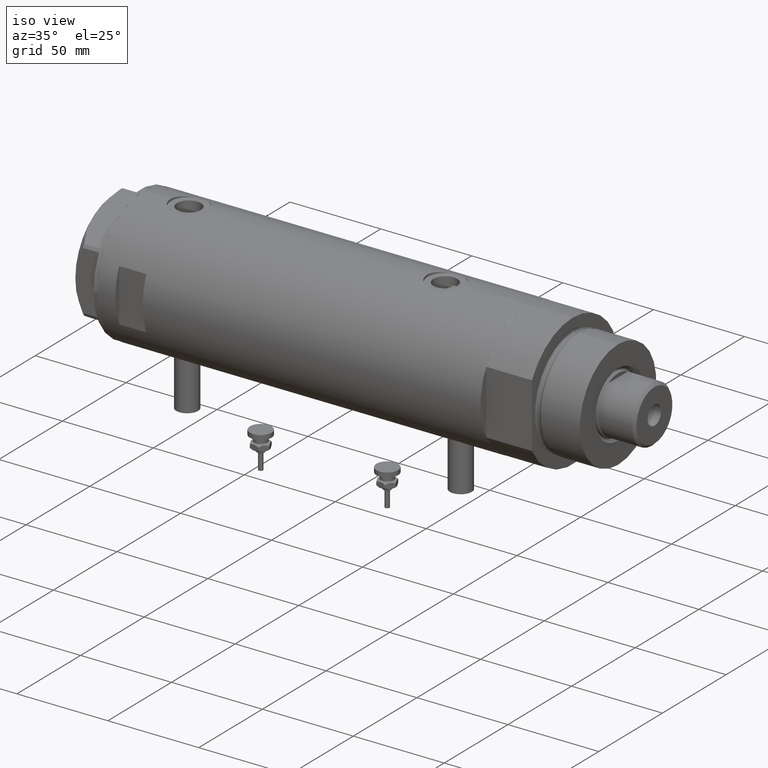
[diagram: clean part render]
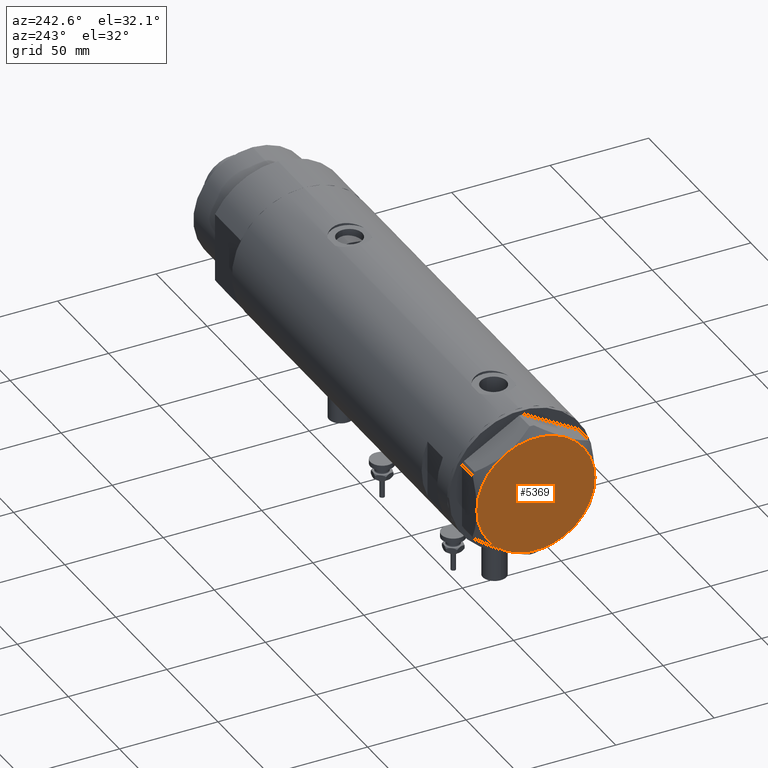
[diagram: tour spotlight — one face highlighted and labeled with its STEP entity id]
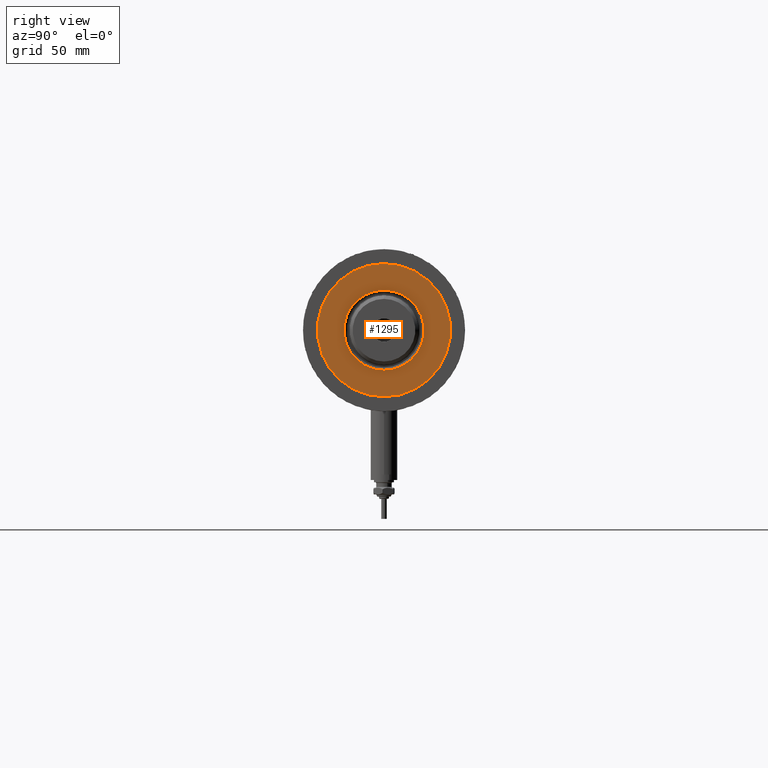
[diagram: tour spotlight — one face highlighted and labeled with its STEP entity id]
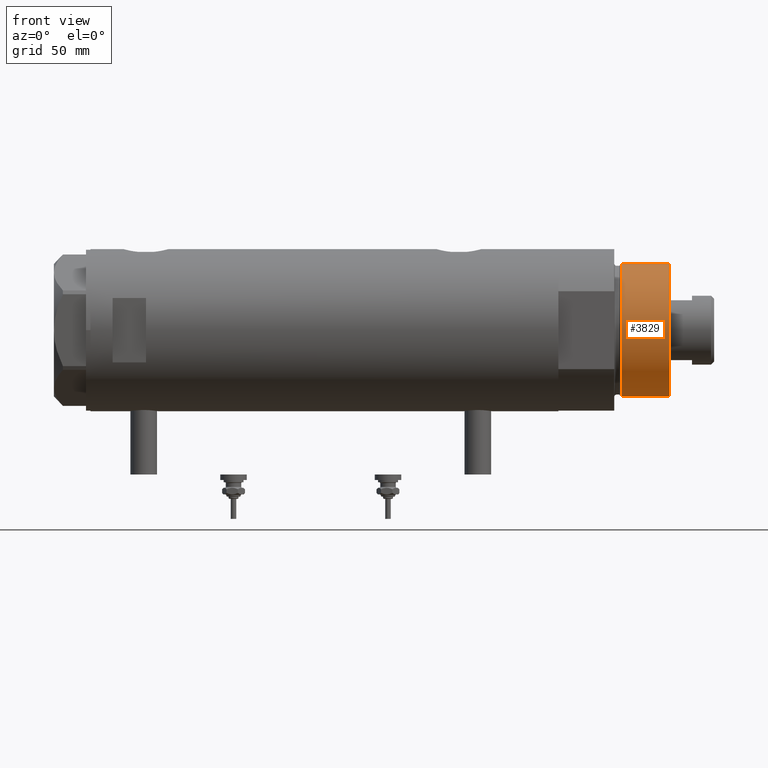
[diagram: tour spotlight — one face highlighted and labeled with its STEP entity id]
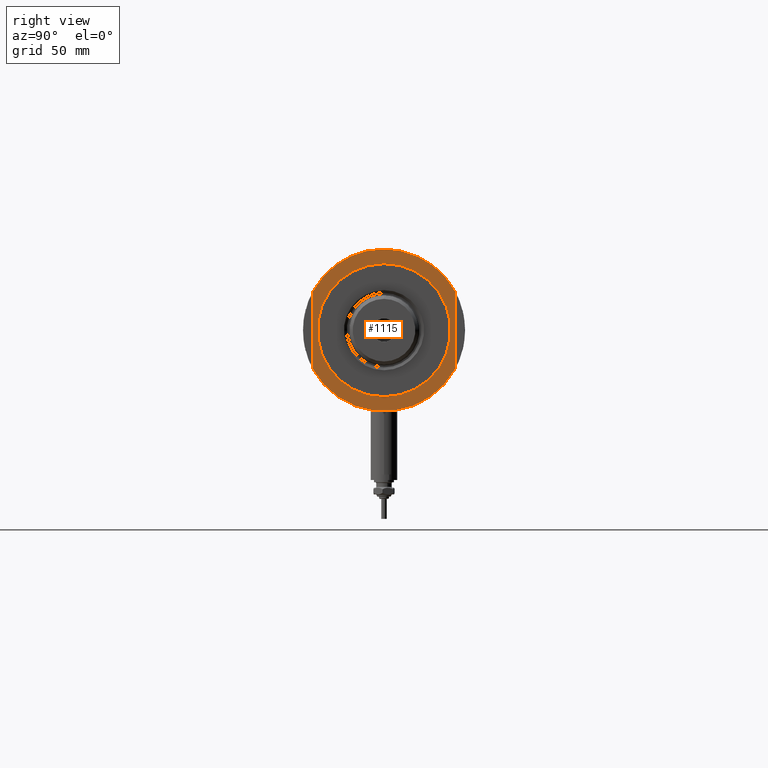
[diagram: tour spotlight — one face highlighted and labeled with its STEP entity id]
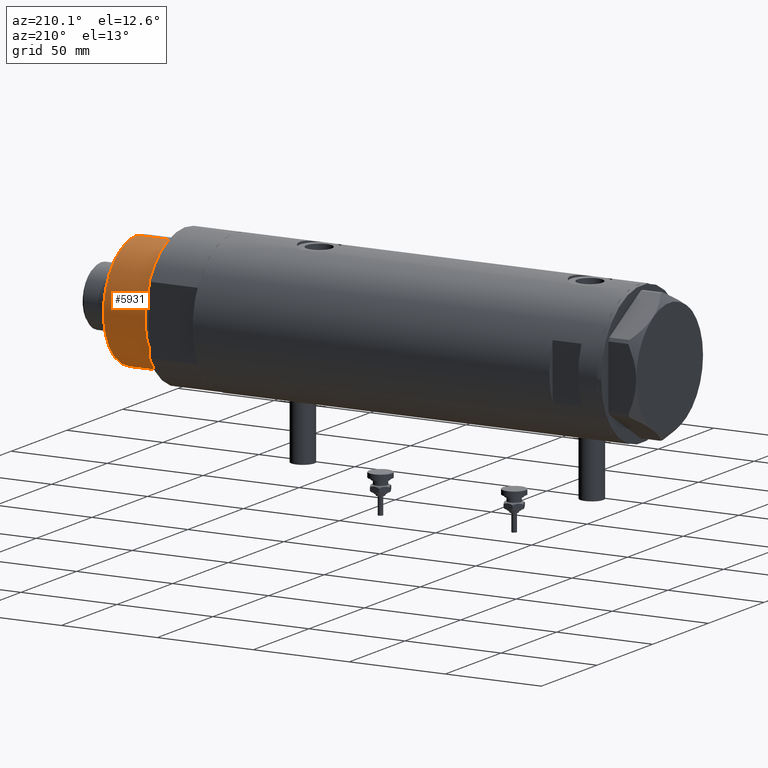
[diagram: tour spotlight — one face highlighted and labeled with its STEP entity id]
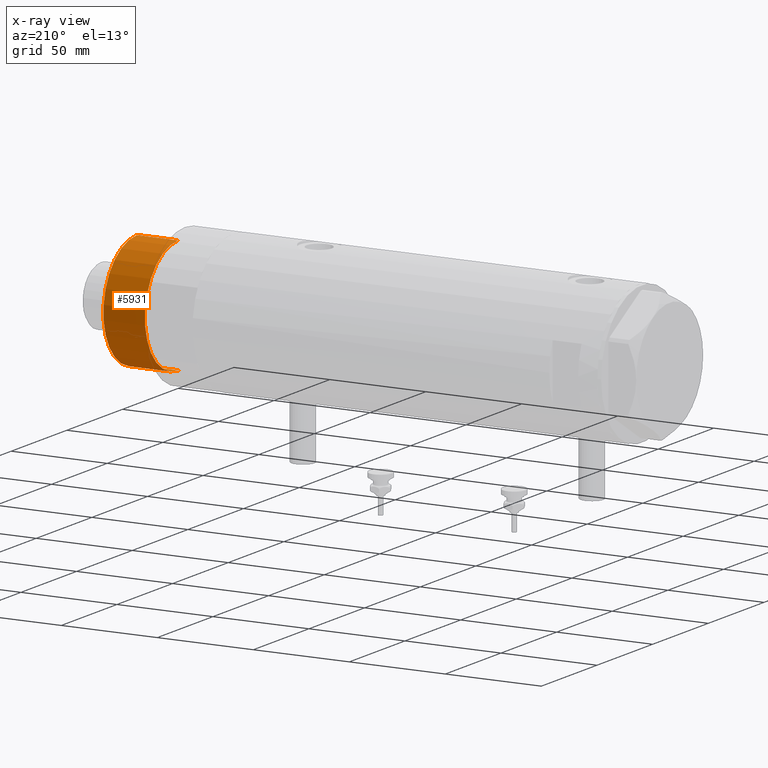
[diagram: x-ray of the same camera — body ghosted, this tour face saturated]
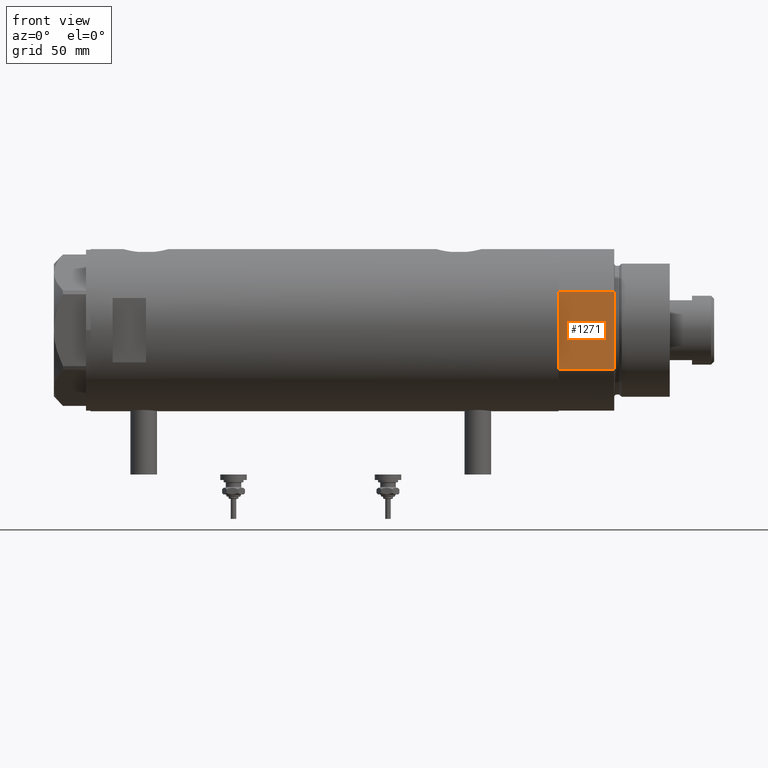
[diagram: tour spotlight — one face highlighted and labeled with its STEP entity id]
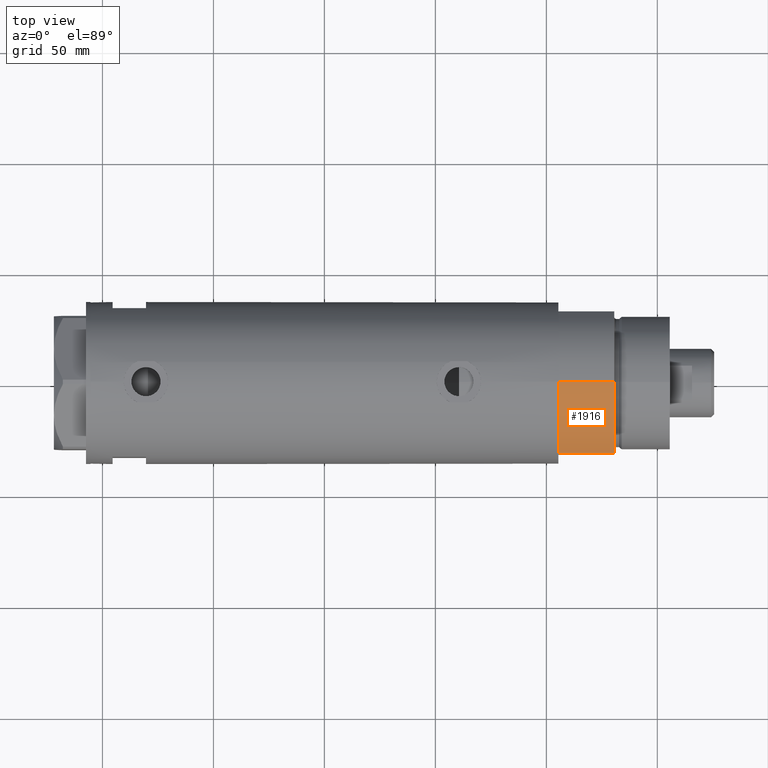
[diagram: tour spotlight — one face highlighted and labeled with its STEP entity id]
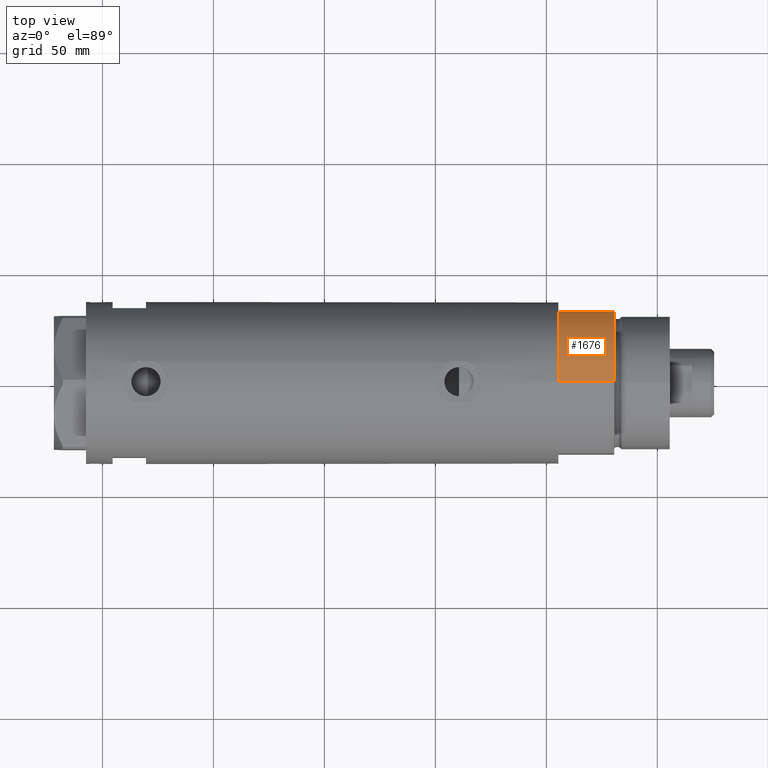
[diagram: tour spotlight — one face highlighted and labeled with its STEP entity id]
A machine part: a face-by-face anatomy tour. The part has 212 B-rep faces; the first image is the clean iso view, then the 8 largest visible faces are spotlighted one at a time (largest first), each with its STEP entity span.

Face 1 — auxiliary view, entity #5369. In plain terms, the highlighted planar face has unit normal (-1, -0, 0).
Definition (entity closure, byte-faithful):
#148 = CIRCLE ( 'NONE', #5714, 30.00000000000000000 ) ;
#362 = EDGE_CURVE ( 'NONE', #2257, #3796, #4923, .T. ) ;
#457 = CARTESIAN_POINT ( 'NONE',  ( 14.99999999999998757, -25.98076211353316722, 14.50000000000000000 ) ) ;
#553 = CARTESIAN_POINT ( 'NONE',  ( 0.000000000000000000, 0.000000000000000000, 14.50000000000000000 ) ) ;
#593 = CARTESIAN_POINT ( 'NONE',  ( 14.99999999999999467, 25.98076211353316367, 14.50000000000000000 ) ) ;
#604 = DIRECTION ( 'NONE',  ( 1.000000000000000000, 0.000000000000000000, 0.000000000000000000 ) ) ;
#734 = CARTESIAN_POINT ( 'NONE',  ( 0.000000000000000000, 0.000000000000000000, 14.50000000000000000 ) ) ;
#924 = CIRCLE ( 'NONE', #1023, 30.00000000000000000 ) ;
#1023 = AXIS2_PLACEMENT_3D ( 'NONE', #2995, #2201, #1208 ) ;
#1129 = DIRECTION ( 'NONE',  ( 1.000000000000000000, 0.000000000000000000, 0.000000000000000000 ) ) ;
#1142 = CIRCLE ( 'NONE', #1339, 30.00000000000000000 ) ;
#1159 = CARTESIAN_POINT ( 'NONE',  ( 0.000000000000000000, 0.000000000000000000, 14.50000000000000000 ) ) ;
#1208 = DIRECTION ( 'NONE',  ( 1.000000000000000000, 0.000000000000000000, 0.000000000000000000 ) ) ;
#1235 = ORIENTED_EDGE ( 'NONE', *, *, #5093, .T. ) ;
#1339 = AXIS2_PLACEMENT_3D ( 'NONE', #734, #4998, #3902 ) ;
#1358 = VERTEX_POINT ( 'NONE', #457 ) ;
#1395 = ORIENTED_EDGE ( 'NONE', *, *, #3097, .T. ) ;
#1505 = DIRECTION ( 'NONE',  ( 1.000000000000000000, 0.000000000000000000, 0.000000000000000000 ) ) ;
#1507 = CARTESIAN_POINT ( 'NONE',  ( -14.99999999999999645, -25.98076211353316367, 14.50000000000000000 ) ) ;
#1604 = VERTEX_POINT ( 'NONE', #2393 ) ;
#1748 = ORIENTED_EDGE ( 'NONE', *, *, #362, .T. ) ;
#1857 = VERTEX_POINT ( 'NONE', #4425 ) ;
#1883 = EDGE_CURVE ( 'NONE', #1604, #2461, #148, .T. ) ;
#2067 = AXIS2_PLACEMENT_3D ( 'NONE', #5623, #4316, #604 ) ;
#2092 = PLANE ( 'NONE',  #2745 ) ;
#2201 = DIRECTION ( 'NONE',  ( 0.000000000000000000, 0.000000000000000000, 1.000000000000000000 ) ) ;
#2220 = DIRECTION ( 'NONE',  ( 1.000000000000000000, 0.000000000000000000, 0.000000000000000000 ) ) ;
#2257 = VERTEX_POINT ( 'NONE', #593 ) ;
#2393 = CARTESIAN_POINT ( 'NONE',  ( -30.00000000000000000, 0.000000000000000000, 14.50000000000000000 ) ) ;
#2461 = VERTEX_POINT ( 'NONE', #1507 ) ;
#2745 = AXIS2_PLACEMENT_3D ( 'NONE', #1159, #4823, #3378 ) ;
#2995 = CARTESIAN_POINT ( 'NONE',  ( 0.000000000000000000, 0.000000000000000000, 14.50000000000000000 ) ) ;
#3097 = EDGE_CURVE ( 'NONE', #3796, #1604, #3772, .T. ) ;
#3212 = DIRECTION ( 'NONE',  ( 0.000000000000000000, 0.000000000000000000, 1.000000000000000000 ) ) ;
#3213 = AXIS2_PLACEMENT_3D ( 'NONE', #553, #3212, #1505 ) ;
#3250 = CARTESIAN_POINT ( 'NONE',  ( -14.99999999999999645, 25.98076211353316367, 14.50000000000000000 ) ) ;
#3378 = DIRECTION ( 'NONE',  ( 1.000000000000000000, 0.000000000000000000, -0.000000000000000000 ) ) ;
#3688 = EDGE_CURVE ( 'NONE', #1358, #1857, #924, .T. ) ;
#3772 = CIRCLE ( 'NONE', #5814, 30.00000000000000000 ) ;
#3796 = VERTEX_POINT ( 'NONE', #3250 ) ;
#3838 = FACE_OUTER_BOUND ( 'NONE', #4028, .T. ) ;
#3902 = DIRECTION ( 'NONE',  ( 1.000000000000000000, 0.000000000000000000, 0.000000000000000000 ) ) ;
#4028 = EDGE_LOOP ( 'NONE', ( #4479, #5111, #1748, #1395, #5285, #1235 ) ) ;
#4075 = CARTESIAN_POINT ( 'NONE',  ( 0.000000000000000000, 0.000000000000000000, 14.50000000000000000 ) ) ;
#4262 = CIRCLE ( 'NONE', #3213, 30.00000000000000000 ) ;
#4316 = DIRECTION ( 'NONE',  ( 0.000000000000000000, 0.000000000000000000, 1.000000000000000000 ) ) ;
#4425 = CARTESIAN_POINT ( 'NONE',  ( 30.00000000000000000, 9.013887592422954582E-15, 14.50000000000000000 ) ) ;
#4479 = ORIENTED_EDGE ( 'NONE', *, *, #3688, .T. ) ;
#4823 = DIRECTION ( 'NONE',  ( 0.000000000000000000, 0.000000000000000000, 1.000000000000000000 ) ) ;
#4923 = CIRCLE ( 'NONE', #2067, 30.00000000000000000 ) ;
#4938 = DIRECTION ( 'NONE',  ( 0.000000000000000000, 0.000000000000000000, 1.000000000000000000 ) ) ;
#4998 = DIRECTION ( 'NONE',  ( 0.000000000000000000, 0.000000000000000000, 1.000000000000000000 ) ) ;
#5093 = EDGE_CURVE ( 'NONE', #2461, #1358, #4262, .T. ) ;
#5111 = ORIENTED_EDGE ( 'NONE', *, *, #5849, .T. ) ;
#5234 = DIRECTION ( 'NONE',  ( 0.000000000000000000, 0.000000000000000000, 1.000000000000000000 ) ) ;
#5285 = ORIENTED_EDGE ( 'NONE', *, *, #1883, .T. ) ;
#5369 = ADVANCED_FACE ( 'NONE', ( #3838 ), #2092, .T. ) ;
#5623 = CARTESIAN_POINT ( 'NONE',  ( 0.000000000000000000, 0.000000000000000000, 14.50000000000000000 ) ) ;
#5681 = CARTESIAN_POINT ( 'NONE',  ( 0.000000000000000000, 0.000000000000000000, 14.50000000000000000 ) ) ;
#5714 = AXIS2_PLACEMENT_3D ( 'NONE', #4075, #4938, #2220 ) ;
#5814 = AXIS2_PLACEMENT_3D ( 'NONE', #5681, #5234, #1129 ) ;
#5849 = EDGE_CURVE ( 'NONE', #1857, #2257, #1142, .T. ) ;

Face 2 — right view, entity #1295. In plain terms, the highlighted planar face has unit normal (1, 0, -0).
Definition (entity closure, byte-faithful):
#122 = CARTESIAN_POINT ( 'NONE',  ( -18.04999999999996874, 2.210487472460968951E-15, 50.19999999999999574 ) ) ;
#207 = CARTESIAN_POINT ( 'NONE',  ( 0.000000000000000000, 0.000000000000000000, 50.19999999999999574 ) ) ;
#340 = ORIENTED_EDGE ( 'NONE', *, *, #2136, .T. ) ;
#349 = VERTEX_POINT ( 'NONE', #122 ) ;
#513 = AXIS2_PLACEMENT_3D ( 'NONE', #5323, #1228, #2565 ) ;
#530 = CIRCLE ( 'NONE', #3116, 30.00000000000000000 ) ;
#571 = ORIENTED_EDGE ( 'NONE', *, *, #1288, .T. ) ;
#601 = CARTESIAN_POINT ( 'NONE',  ( -30.00000000000000000, 0.000000000000000000, 50.19999999999999574 ) ) ;
#685 = VERTEX_POINT ( 'NONE', #3263 ) ;
#701 = DIRECTION ( 'NONE',  ( 0.000000000000000000, 0.000000000000000000, 1.000000000000000000 ) ) ;
#783 = CARTESIAN_POINT ( 'NONE',  ( 0.000000000000000000, 0.000000000000000000, 50.19999999999999574 ) ) ;
#915 = CIRCLE ( 'NONE', #5221, 18.04999999999996874 ) ;
#947 = EDGE_CURVE ( 'NONE', #4182, #685, #3870, .T. ) ;
#1228 = DIRECTION ( 'NONE',  ( -0.000000000000000000, -0.000000000000000000, -1.000000000000000000 ) ) ;
#1269 = DIRECTION ( 'NONE',  ( 1.000000000000000000, 0.000000000000000000, -0.000000000000000000 ) ) ;
#1288 = EDGE_CURVE ( 'NONE', #349, #2923, #915, .T. ) ;
#1295 = ADVANCED_FACE ( 'NONE', ( #3137, #5371 ), #3970, .T. ) ;
#1717 = DIRECTION ( 'NONE',  ( 1.000000000000000000, 0.000000000000000000, 0.000000000000000000 ) ) ;
#1739 = EDGE_LOOP ( 'NONE', ( #5769, #340 ) ) ;
#1757 = DIRECTION ( 'NONE',  ( 0.000000000000000000, 0.000000000000000000, 1.000000000000000000 ) ) ;
#2136 = EDGE_CURVE ( 'NONE', #685, #4182, #530, .T. ) ;
#2142 = EDGE_CURVE ( 'NONE', #2923, #349, #2334, .T. ) ;
#2162 = DIRECTION ( 'NONE',  ( -0.000000000000000000, -0.000000000000000000, -1.000000000000000000 ) ) ;
#2274 = ORIENTED_EDGE ( 'NONE', *, *, #2142, .T. ) ;
#2334 = CIRCLE ( 'NONE', #513, 18.04999999999996874 ) ;
#2565 = DIRECTION ( 'NONE',  ( 1.000000000000000000, 0.000000000000000000, 0.000000000000000000 ) ) ;
#2645 = AXIS2_PLACEMENT_3D ( 'NONE', #5827, #1757, #1269 ) ;
#2714 = CARTESIAN_POINT ( 'NONE',  ( 0.000000000000000000, 0.000000000000000000, 50.19999999999999574 ) ) ;
#2923 = VERTEX_POINT ( 'NONE', #4607 ) ;
#3116 = AXIS2_PLACEMENT_3D ( 'NONE', #2714, #3228, #1717 ) ;
#3137 = FACE_BOUND ( 'NONE', #5774, .T. ) ;
#3228 = DIRECTION ( 'NONE',  ( 0.000000000000000000, 0.000000000000000000, 1.000000000000000000 ) ) ;
#3263 = CARTESIAN_POINT ( 'NONE',  ( 30.00000000000000000, 3.673940397442058389E-15, 50.19999999999999574 ) ) ;
#3496 = AXIS2_PLACEMENT_3D ( 'NONE', #207, #701, #4388 ) ;
#3870 = CIRCLE ( 'NONE', #3496, 30.00000000000000000 ) ;
#3970 = PLANE ( 'NONE',  #2645 ) ;
#4182 = VERTEX_POINT ( 'NONE', #601 ) ;
#4388 = DIRECTION ( 'NONE',  ( 1.000000000000000000, 0.000000000000000000, 0.000000000000000000 ) ) ;
#4607 = CARTESIAN_POINT ( 'NONE',  ( 18.04999999999996874, 0.000000000000000000, 50.19999999999999574 ) ) ;
#4875 = DIRECTION ( 'NONE',  ( 1.000000000000000000, 0.000000000000000000, 0.000000000000000000 ) ) ;
#5221 = AXIS2_PLACEMENT_3D ( 'NONE', #783, #2162, #4875 ) ;
#5323 = CARTESIAN_POINT ( 'NONE',  ( 0.000000000000000000, 0.000000000000000000, 50.19999999999999574 ) ) ;
#5371 = FACE_OUTER_BOUND ( 'NONE', #1739, .T. ) ;
#5769 = ORIENTED_EDGE ( 'NONE', *, *, #947, .T. ) ;
#5774 = EDGE_LOOP ( 'NONE', ( #2274, #571 ) ) ;
#5827 = CARTESIAN_POINT ( 'NONE',  ( 0.000000000000000000, 0.000000000000000000, 50.19999999999999574 ) ) ;

Face 3 — front view, entity #3829. In plain terms, the highlighted cylindrical surface (partial cylindrical patch) has radius 30 mm, axis along (-1, -0, 0).
Definition (entity closure, byte-faithful):
#207 = CARTESIAN_POINT ( 'NONE',  ( 0.000000000000000000, 0.000000000000000000, 50.19999999999999574 ) ) ;
#285 = EDGE_CURVE ( 'NONE', #802, #5473, #2331, .T. ) ;
#355 = VECTOR ( 'NONE', #5233, 1000.000000000000000 ) ;
#397 = EDGE_CURVE ( 'NONE', #4182, #802, #1285, .T. ) ;
#601 = CARTESIAN_POINT ( 'NONE',  ( -30.00000000000000000, 0.000000000000000000, 50.19999999999999574 ) ) ;
#685 = VERTEX_POINT ( 'NONE', #3263 ) ;
#701 = DIRECTION ( 'NONE',  ( 0.000000000000000000, 0.000000000000000000, 1.000000000000000000 ) ) ;
#802 = VERTEX_POINT ( 'NONE', #5100 ) ;
#864 = ORIENTED_EDGE ( 'NONE', *, *, #947, .F. ) ;
#876 = ORIENTED_EDGE ( 'NONE', *, *, #5673, .F. ) ;
#947 = EDGE_CURVE ( 'NONE', #4182, #685, #3870, .T. ) ;
#965 = DIRECTION ( 'NONE',  ( -0.000000000000000000, -0.000000000000000000, -1.000000000000000000 ) ) ;
#1037 = CARTESIAN_POINT ( 'NONE',  ( 0.000000000000000000, 0.000000000000000000, 28.57384048104054486 ) ) ;
#1167 = ORIENTED_EDGE ( 'NONE', *, *, #285, .T. ) ;
#1285 = LINE ( 'NONE', #4441, #5500 ) ;
#2042 = EDGE_LOOP ( 'NONE', ( #876, #864, #3039, #1167 ) ) ;
#2324 = CYLINDRICAL_SURFACE ( 'NONE', #5133, 30.00000000000000000 ) ;
#2331 = CIRCLE ( 'NONE', #3765, 30.00000000000000000 ) ;
#2464 = LINE ( 'NONE', #4283, #355 ) ;
#2774 = DIRECTION ( 'NONE',  ( -1.000000000000000000, 0.000000000000000000, 0.000000000000000000 ) ) ;
#2975 = DIRECTION ( 'NONE',  ( -0.000000000000000000, -0.000000000000000000, -1.000000000000000000 ) ) ;
#3039 = ORIENTED_EDGE ( 'NONE', *, *, #397, .T. ) ;
#3162 = FACE_OUTER_BOUND ( 'NONE', #2042, .T. ) ;
#3263 = CARTESIAN_POINT ( 'NONE',  ( 30.00000000000000000, 3.673940397442058389E-15, 50.19999999999999574 ) ) ;
#3496 = AXIS2_PLACEMENT_3D ( 'NONE', #207, #701, #4388 ) ;
#3765 = AXIS2_PLACEMENT_3D ( 'NONE', #1037, #3777, #4184 ) ;
#3777 = DIRECTION ( 'NONE',  ( -0.000000000000000000, -0.000000000000000000, 1.000000000000000000 ) ) ;
#3829 = ADVANCED_FACE ( 'NONE', ( #3162 ), #2324, .T. ) ;
#3870 = CIRCLE ( 'NONE', #3496, 30.00000000000000000 ) ;
#4182 = VERTEX_POINT ( 'NONE', #601 ) ;
#4184 = DIRECTION ( 'NONE',  ( 1.000000000000000000, 0.000000000000000000, 0.000000000000000000 ) ) ;
#4283 = CARTESIAN_POINT ( 'NONE',  ( 30.00000000000000000, 3.673940397442058389E-15, 50.19999999999999574 ) ) ;
#4388 = DIRECTION ( 'NONE',  ( 1.000000000000000000, 0.000000000000000000, 0.000000000000000000 ) ) ;
#4441 = CARTESIAN_POINT ( 'NONE',  ( -30.00000000000000000, 0.000000000000000000, 50.19999999999999574 ) ) ;
#4975 = CARTESIAN_POINT ( 'NONE',  ( 30.00000000000000000, 3.673940397442058389E-15, 28.57384048104054486 ) ) ;
#5056 = CARTESIAN_POINT ( 'NONE',  ( 0.000000000000000000, 0.000000000000000000, 50.19999999999999574 ) ) ;
#5100 = CARTESIAN_POINT ( 'NONE',  ( -30.00000000000000000, 0.000000000000000000, 28.57384048104054486 ) ) ;
#5133 = AXIS2_PLACEMENT_3D ( 'NONE', #5056, #965, #2774 ) ;
#5233 = DIRECTION ( 'NONE',  ( -0.000000000000000000, -0.000000000000000000, -1.000000000000000000 ) ) ;
#5473 = VERTEX_POINT ( 'NONE', #4975 ) ;
#5500 = VECTOR ( 'NONE', #2975, 1000.000000000000000 ) ;
#5673 = EDGE_CURVE ( 'NONE', #685, #5473, #2464, .T. ) ;

Face 4 — right view, entity #1115. In plain terms, the highlighted planar face has unit normal (1, 0, -0).
Definition (entity closure, byte-faithful):
#174 = DIRECTION ( 'NONE',  ( 1.000000000000000000, 0.000000000000000000, 0.000000000000000000 ) ) ;
#245 = VECTOR ( 'NONE', #2412, 1000.000000000000000 ) ;
#293 = CARTESIAN_POINT ( 'NONE',  ( 0.000000000000000000, 0.000000000000000000, 25.19999999999999929 ) ) ;
#299 = CARTESIAN_POINT ( 'NONE',  ( 0.000000000000000000, 0.000000000000000000, 25.19999999999999929 ) ) ;
#480 = EDGE_LOOP ( 'NONE', ( #622, #2026, #1491, #5923, #2438 ) ) ;
#519 = AXIS2_PLACEMENT_3D ( 'NONE', #1144, #2507, #1086 ) ;
#622 = ORIENTED_EDGE ( 'NONE', *, *, #1301, .F. ) ;
#634 = CIRCLE ( 'NONE', #3694, 36.50000000000000000 ) ;
#639 = CARTESIAN_POINT ( 'NONE',  ( 30.00000000000000355, 0.000000000000000000, 25.19999999999999929 ) ) ;
#735 = DIRECTION ( 'NONE',  ( 0.000000000000000000, 0.000000000000000000, 1.000000000000000000 ) ) ;
#748 = PLANE ( 'NONE',  #519 ) ;
#840 = LINE ( 'NONE', #4969, #3387 ) ;
#871 = DIRECTION ( 'NONE',  ( -1.000000000000000000, -0.000000000000000000, -0.000000000000000000 ) ) ;
#875 = CARTESIAN_POINT ( 'NONE',  ( 0.000000000000000000, 0.000000000000000000, 25.19999999999999929 ) ) ;
#987 = VERTEX_POINT ( 'NONE', #2865 ) ;
#1086 = DIRECTION ( 'NONE',  ( 1.000000000000000000, 0.000000000000000000, -0.000000000000000000 ) ) ;
#1115 = ADVANCED_FACE ( 'NONE', ( #1543, #3435 ), #748, .T. ) ;
#1144 = CARTESIAN_POINT ( 'NONE',  ( 0.000000000000000000, 0.000000000000000000, 25.19999999999999929 ) ) ;
#1301 = EDGE_CURVE ( 'NONE', #4789, #3155, #840, .T. ) ;
#1323 = ORIENTED_EDGE ( 'NONE', *, *, #4309, .T. ) ;
#1343 = CARTESIAN_POINT ( 'NONE',  ( -36.50000000000000000, 0.000000000000000000, 25.19999999999999929 ) ) ;
#1403 = VERTEX_POINT ( 'NONE', #2093 ) ;
#1463 = VERTEX_POINT ( 'NONE', #1343 ) ;
#1491 = ORIENTED_EDGE ( 'NONE', *, *, #4499, .F. ) ;
#1502 = CARTESIAN_POINT ( 'NONE',  ( -17.55704986607943141, 32.00000000000000000, 25.19999999999999929 ) ) ;
#1543 = FACE_BOUND ( 'NONE', #5010, .T. ) ;
#1551 = DIRECTION ( 'NONE',  ( -0.000000000000000000, -0.000000000000000000, -1.000000000000000000 ) ) ;
#1791 = CARTESIAN_POINT ( 'NONE',  ( 17.55704986607943496, -32.00000000000000000, 25.19999999999999929 ) ) ;
#1869 = DIRECTION ( 'NONE',  ( 1.000000000000000000, 0.000000000000000000, 0.000000000000000000 ) ) ;
#1885 = AXIS2_PLACEMENT_3D ( 'NONE', #299, #735, #4415 ) ;
#1983 = VERTEX_POINT ( 'NONE', #639 ) ;
#1992 = CIRCLE ( 'NONE', #3685, 30.00000000000000355 ) ;
#2026 = ORIENTED_EDGE ( 'NONE', *, *, #4659, .T. ) ;
#2093 = CARTESIAN_POINT ( 'NONE',  ( 17.55704986607943496, 32.00000000000000000, 25.19999999999999929 ) ) ;
#2148 = DIRECTION ( 'NONE',  ( 0.000000000000000000, 0.000000000000000000, 1.000000000000000000 ) ) ;
#2412 = DIRECTION ( 'NONE',  ( 1.000000000000000000, 0.000000000000000000, 0.000000000000000000 ) ) ;
#2438 = ORIENTED_EDGE ( 'NONE', *, *, #3344, .T. ) ;
#2507 = DIRECTION ( 'NONE',  ( 0.000000000000000000, 0.000000000000000000, 1.000000000000000000 ) ) ;
#2621 = DIRECTION ( 'NONE',  ( 0.000000000000000000, 0.000000000000000000, 1.000000000000000000 ) ) ;
#2656 = AXIS2_PLACEMENT_3D ( 'NONE', #3279, #1551, #174 ) ;
#2810 = CIRCLE ( 'NONE', #1885, 36.50000000000000000 ) ;
#2865 = CARTESIAN_POINT ( 'NONE',  ( -17.55704986607943496, 32.00000000000000000, 25.19999999999999929 ) ) ;
#3016 = CIRCLE ( 'NONE', #4624, 36.50000000000000000 ) ;
#3130 = EDGE_CURVE ( 'NONE', #987, #1463, #2810, .T. ) ;
#3155 = VERTEX_POINT ( 'NONE', #3181 ) ;
#3181 = CARTESIAN_POINT ( 'NONE',  ( -17.55704986607943496, -32.00000000000000000, 25.19999999999999929 ) ) ;
#3279 = CARTESIAN_POINT ( 'NONE',  ( 0.000000000000000000, 0.000000000000000000, 25.19999999999999929 ) ) ;
#3344 = EDGE_CURVE ( 'NONE', #1463, #3155, #3016, .T. ) ;
#3387 = VECTOR ( 'NONE', #871, 1000.000000000000000 ) ;
#3395 = VERTEX_POINT ( 'NONE', #4379 ) ;
#3435 = FACE_OUTER_BOUND ( 'NONE', #480, .T. ) ;
#3471 = DIRECTION ( 'NONE',  ( 1.000000000000000000, 0.000000000000000000, 0.000000000000000000 ) ) ;
#3685 = AXIS2_PLACEMENT_3D ( 'NONE', #875, #4563, #1869 ) ;
#3694 = AXIS2_PLACEMENT_3D ( 'NONE', #293, #2148, #5808 ) ;
#3789 = EDGE_CURVE ( 'NONE', #1983, #3395, #1992, .T. ) ;
#4031 = CARTESIAN_POINT ( 'NONE',  ( 0.000000000000000000, 0.000000000000000000, 25.19999999999999929 ) ) ;
#4309 = EDGE_CURVE ( 'NONE', #3395, #1983, #5524, .T. ) ;
#4379 = CARTESIAN_POINT ( 'NONE',  ( -30.00000000000000355, 3.673940397442059178E-15, 25.19999999999999929 ) ) ;
#4415 = DIRECTION ( 'NONE',  ( 1.000000000000000000, 0.000000000000000000, 0.000000000000000000 ) ) ;
#4499 = EDGE_CURVE ( 'NONE', #987, #1403, #5597, .T. ) ;
#4563 = DIRECTION ( 'NONE',  ( -0.000000000000000000, -0.000000000000000000, -1.000000000000000000 ) ) ;
#4624 = AXIS2_PLACEMENT_3D ( 'NONE', #4031, #2621, #3471 ) ;
#4659 = EDGE_CURVE ( 'NONE', #4789, #1403, #634, .T. ) ;
#4789 = VERTEX_POINT ( 'NONE', #1791 ) ;
#4969 = CARTESIAN_POINT ( 'NONE',  ( -17.55704986607943141, -32.00000000000000000, 25.19999999999999929 ) ) ;
#5010 = EDGE_LOOP ( 'NONE', ( #5447, #1323 ) ) ;
#5447 = ORIENTED_EDGE ( 'NONE', *, *, #3789, .T. ) ;
#5524 = CIRCLE ( 'NONE', #2656, 30.00000000000000355 ) ;
#5597 = LINE ( 'NONE', #1502, #245 ) ;
#5808 = DIRECTION ( 'NONE',  ( 1.000000000000000000, 0.000000000000000000, 0.000000000000000000 ) ) ;
#5923 = ORIENTED_EDGE ( 'NONE', *, *, #3130, .T. ) ;

Face 5 — auxiliary view, entity #5931. An x-ray twin of the same camera follows (body ghosted, this face saturated) — the face is partly hidden behind the body. In plain terms, the highlighted cylindrical surface (partial cylindrical patch) has radius 30 mm, axis along (-1, -0, 0).
Definition (entity closure, byte-faithful):
#158 = CARTESIAN_POINT ( 'NONE',  ( 0.000000000000000000, 0.000000000000000000, 50.19999999999999574 ) ) ;
#355 = VECTOR ( 'NONE', #5233, 1000.000000000000000 ) ;
#397 = EDGE_CURVE ( 'NONE', #4182, #802, #1285, .T. ) ;
#530 = CIRCLE ( 'NONE', #3116, 30.00000000000000000 ) ;
#601 = CARTESIAN_POINT ( 'NONE',  ( -30.00000000000000000, 0.000000000000000000, 50.19999999999999574 ) ) ;
#685 = VERTEX_POINT ( 'NONE', #3263 ) ;
#802 = VERTEX_POINT ( 'NONE', #5100 ) ;
#982 = DIRECTION ( 'NONE',  ( -1.000000000000000000, 0.000000000000000000, 0.000000000000000000 ) ) ;
#1179 = DIRECTION ( 'NONE',  ( -0.000000000000000000, -0.000000000000000000, 1.000000000000000000 ) ) ;
#1285 = LINE ( 'NONE', #4441, #5500 ) ;
#1534 = FACE_OUTER_BOUND ( 'NONE', #5157, .T. ) ;
#1606 = ORIENTED_EDGE ( 'NONE', *, *, #2136, .F. ) ;
#1671 = DIRECTION ( 'NONE',  ( 1.000000000000000000, 0.000000000000000000, 0.000000000000000000 ) ) ;
#1717 = DIRECTION ( 'NONE',  ( 1.000000000000000000, 0.000000000000000000, 0.000000000000000000 ) ) ;
#2136 = EDGE_CURVE ( 'NONE', #685, #4182, #530, .T. ) ;
#2350 = AXIS2_PLACEMENT_3D ( 'NONE', #3889, #1179, #1671 ) ;
#2371 = AXIS2_PLACEMENT_3D ( 'NONE', #158, #3242, #982 ) ;
#2464 = LINE ( 'NONE', #4283, #355 ) ;
#2714 = CARTESIAN_POINT ( 'NONE',  ( 0.000000000000000000, 0.000000000000000000, 50.19999999999999574 ) ) ;
#2975 = DIRECTION ( 'NONE',  ( -0.000000000000000000, -0.000000000000000000, -1.000000000000000000 ) ) ;
#3116 = AXIS2_PLACEMENT_3D ( 'NONE', #2714, #3228, #1717 ) ;
#3228 = DIRECTION ( 'NONE',  ( 0.000000000000000000, 0.000000000000000000, 1.000000000000000000 ) ) ;
#3242 = DIRECTION ( 'NONE',  ( -0.000000000000000000, -0.000000000000000000, -1.000000000000000000 ) ) ;
#3263 = CARTESIAN_POINT ( 'NONE',  ( 30.00000000000000000, 3.673940397442058389E-15, 50.19999999999999574 ) ) ;
#3542 = ORIENTED_EDGE ( 'NONE', *, *, #397, .F. ) ;
#3646 = EDGE_CURVE ( 'NONE', #5473, #802, #3972, .T. ) ;
#3889 = CARTESIAN_POINT ( 'NONE',  ( 0.000000000000000000, 0.000000000000000000, 28.57384048104054486 ) ) ;
#3972 = CIRCLE ( 'NONE', #2350, 30.00000000000000000 ) ;
#4182 = VERTEX_POINT ( 'NONE', #601 ) ;
#4283 = CARTESIAN_POINT ( 'NONE',  ( 30.00000000000000000, 3.673940397442058389E-15, 50.19999999999999574 ) ) ;
#4441 = CARTESIAN_POINT ( 'NONE',  ( -30.00000000000000000, 0.000000000000000000, 50.19999999999999574 ) ) ;
#4853 = ORIENTED_EDGE ( 'NONE', *, *, #3646, .T. ) ;
#4975 = CARTESIAN_POINT ( 'NONE',  ( 30.00000000000000000, 3.673940397442058389E-15, 28.57384048104054486 ) ) ;
#5078 = CYLINDRICAL_SURFACE ( 'NONE', #2371, 30.00000000000000000 ) ;
#5100 = CARTESIAN_POINT ( 'NONE',  ( -30.00000000000000000, 0.000000000000000000, 28.57384048104054486 ) ) ;
#5157 = EDGE_LOOP ( 'NONE', ( #1606, #5645, #4853, #3542 ) ) ;
#5233 = DIRECTION ( 'NONE',  ( -0.000000000000000000, -0.000000000000000000, -1.000000000000000000 ) ) ;
#5473 = VERTEX_POINT ( 'NONE', #4975 ) ;
#5500 = VECTOR ( 'NONE', #2975, 1000.000000000000000 ) ;
#5645 = ORIENTED_EDGE ( 'NONE', *, *, #5673, .T. ) ;
#5673 = EDGE_CURVE ( 'NONE', #685, #5473, #2464, .T. ) ;
#5931 = ADVANCED_FACE ( 'NONE', ( #1534 ), #5078, .T. ) ;

Face 6 — front view, entity #1271. In plain terms, the highlighted planar face has unit normal (-0, 1, 0).
Definition (entity closure, byte-faithful):
#39 = AXIS2_PLACEMENT_3D ( 'NONE', #3589, #1356, #2240 ) ;
#328 = VECTOR ( 'NONE', #5212, 1000.000000000000000 ) ;
#484 = ORIENTED_EDGE ( 'NONE', *, *, #1301, .T. ) ;
#684 = LINE ( 'NONE', #2993, #1795 ) ;
#840 = LINE ( 'NONE', #4969, #3387 ) ;
#871 = DIRECTION ( 'NONE',  ( -1.000000000000000000, -0.000000000000000000, -0.000000000000000000 ) ) ;
#872 = CARTESIAN_POINT ( 'NONE',  ( -17.55704986607943496, -32.00000000000000000, 0.000000000000000000 ) ) ;
#879 = CARTESIAN_POINT ( 'NONE',  ( -17.55704986607943141, -32.00000000000000000, 0.000000000000000000 ) ) ;
#939 = VECTOR ( 'NONE', #4945, 1000.000000000000000 ) ;
#1140 = ORIENTED_EDGE ( 'NONE', *, *, #1169, .T. ) ;
#1169 = EDGE_CURVE ( 'NONE', #1450, #4789, #2990, .T. ) ;
#1271 = ADVANCED_FACE ( 'NONE', ( #5395 ), #1297, .F. ) ;
#1297 = PLANE ( 'NONE',  #39 ) ;
#1301 = EDGE_CURVE ( 'NONE', #4789, #3155, #840, .T. ) ;
#1356 = DIRECTION ( 'NONE',  ( -0.000000000000000000, 1.000000000000000000, 0.000000000000000000 ) ) ;
#1450 = VERTEX_POINT ( 'NONE', #3086 ) ;
#1703 = ORIENTED_EDGE ( 'NONE', *, *, #2372, .F. ) ;
#1731 = LINE ( 'NONE', #1837, #5328 ) ;
#1773 = VERTEX_POINT ( 'NONE', #872 ) ;
#1781 = EDGE_CURVE ( 'NONE', #1450, #4077, #1731, .T. ) ;
#1791 = CARTESIAN_POINT ( 'NONE',  ( 17.55704986607943496, -32.00000000000000000, 25.19999999999999929 ) ) ;
#1795 = VECTOR ( 'NONE', #4302, 1000.000000000000000 ) ;
#1837 = CARTESIAN_POINT ( 'NONE',  ( -17.55704986607943141, -32.00000000000000000, 0.000000000000000000 ) ) ;
#2163 = DIRECTION ( 'NONE',  ( -1.000000000000000000, -0.000000000000000000, -0.000000000000000000 ) ) ;
#2240 = DIRECTION ( 'NONE',  ( 0.000000000000000000, -0.000000000000000000, 1.000000000000000000 ) ) ;
#2372 = EDGE_CURVE ( 'NONE', #4077, #1773, #684, .T. ) ;
#2990 = LINE ( 'NONE', #3364, #328 ) ;
#2993 = CARTESIAN_POINT ( 'NONE',  ( -17.55704986607943141, -32.00000000000000000, 0.000000000000000000 ) ) ;
#3086 = CARTESIAN_POINT ( 'NONE',  ( 17.55704986607943141, -32.00000000000000000, 0.000000000000000000 ) ) ;
#3110 = LINE ( 'NONE', #879, #939 ) ;
#3155 = VERTEX_POINT ( 'NONE', #3181 ) ;
#3181 = CARTESIAN_POINT ( 'NONE',  ( -17.55704986607943496, -32.00000000000000000, 25.19999999999999929 ) ) ;
#3364 = CARTESIAN_POINT ( 'NONE',  ( 17.55704986607943141, -32.00000000000000000, 0.000000000000000000 ) ) ;
#3387 = VECTOR ( 'NONE', #871, 1000.000000000000000 ) ;
#3589 = CARTESIAN_POINT ( 'NONE',  ( -17.55704986607943141, -32.00000000000000000, 0.000000000000000000 ) ) ;
#4077 = VERTEX_POINT ( 'NONE', #4440 ) ;
#4159 = ORIENTED_EDGE ( 'NONE', *, *, #1781, .F. ) ;
#4302 = DIRECTION ( 'NONE',  ( -1.000000000000000000, -0.000000000000000000, -0.000000000000000000 ) ) ;
#4440 = CARTESIAN_POINT ( 'NONE',  ( 0.000000000000000000, -32.00000000000000000, 0.000000000000000000 ) ) ;
#4789 = VERTEX_POINT ( 'NONE', #1791 ) ;
#4894 = ORIENTED_EDGE ( 'NONE', *, *, #5469, .F. ) ;
#4945 = DIRECTION ( 'NONE',  ( -0.000000000000000000, -0.000000000000000000, 1.000000000000000000 ) ) ;
#4969 = CARTESIAN_POINT ( 'NONE',  ( -17.55704986607943141, -32.00000000000000000, 25.19999999999999929 ) ) ;
#5212 = DIRECTION ( 'NONE',  ( -0.000000000000000000, -0.000000000000000000, 1.000000000000000000 ) ) ;
#5328 = VECTOR ( 'NONE', #2163, 1000.000000000000000 ) ;
#5395 = FACE_OUTER_BOUND ( 'NONE', #5882, .T. ) ;
#5469 = EDGE_CURVE ( 'NONE', #1773, #3155, #3110, .T. ) ;
#5882 = EDGE_LOOP ( 'NONE', ( #484, #4894, #1703, #4159, #1140 ) ) ;

Face 7 — top view, entity #1916. In plain terms, the highlighted cylindrical surface (partial cylindrical patch) has radius 36.5 mm, axis along (-1, -0, 0).
Definition (entity closure, byte-faithful):
#77 = CYLINDRICAL_SURFACE ( 'NONE', #4248, 36.50000000000000000 ) ;
#95 = DIRECTION ( 'NONE',  ( 1.000000000000000000, 0.000000000000000000, 0.000000000000000000 ) ) ;
#153 = CARTESIAN_POINT ( 'NONE',  ( 0.000000000000000000, 0.000000000000000000, 0.000000000000000000 ) ) ;
#315 = EDGE_CURVE ( 'NONE', #3220, #1773, #5310, .T. ) ;
#489 = DIRECTION ( 'NONE',  ( -1.000000000000000000, 0.000000000000000000, 0.000000000000000000 ) ) ;
#521 = CARTESIAN_POINT ( 'NONE',  ( 0.000000000000000000, 0.000000000000000000, 25.19999999999999929 ) ) ;
#847 = ORIENTED_EDGE ( 'NONE', *, *, #2225, .T. ) ;
#872 = CARTESIAN_POINT ( 'NONE',  ( -17.55704986607943496, -32.00000000000000000, 0.000000000000000000 ) ) ;
#879 = CARTESIAN_POINT ( 'NONE',  ( -17.55704986607943141, -32.00000000000000000, 0.000000000000000000 ) ) ;
#939 = VECTOR ( 'NONE', #4945, 1000.000000000000000 ) ;
#1052 = EDGE_LOOP ( 'NONE', ( #1918, #847, #1577, #4690 ) ) ;
#1073 = DIRECTION ( 'NONE',  ( 0.000000000000000000, 0.000000000000000000, 1.000000000000000000 ) ) ;
#1343 = CARTESIAN_POINT ( 'NONE',  ( -36.50000000000000000, 0.000000000000000000, 25.19999999999999929 ) ) ;
#1463 = VERTEX_POINT ( 'NONE', #1343 ) ;
#1577 = ORIENTED_EDGE ( 'NONE', *, *, #315, .T. ) ;
#1773 = VERTEX_POINT ( 'NONE', #872 ) ;
#1916 = ADVANCED_FACE ( 'NONE', ( #3138 ), #77, .T. ) ;
#1918 = ORIENTED_EDGE ( 'NONE', *, *, #3344, .F. ) ;
#2225 = EDGE_CURVE ( 'NONE', #1463, #3220, #5156, .T. ) ;
#2363 = CARTESIAN_POINT ( 'NONE',  ( -36.50000000000000000, 0.000000000000000000, 25.19999999999999929 ) ) ;
#2621 = DIRECTION ( 'NONE',  ( 0.000000000000000000, 0.000000000000000000, 1.000000000000000000 ) ) ;
#3016 = CIRCLE ( 'NONE', #4624, 36.50000000000000000 ) ;
#3110 = LINE ( 'NONE', #879, #939 ) ;
#3138 = FACE_OUTER_BOUND ( 'NONE', #1052, .T. ) ;
#3155 = VERTEX_POINT ( 'NONE', #3181 ) ;
#3181 = CARTESIAN_POINT ( 'NONE',  ( -17.55704986607943496, -32.00000000000000000, 25.19999999999999929 ) ) ;
#3220 = VERTEX_POINT ( 'NONE', #3724 ) ;
#3344 = EDGE_CURVE ( 'NONE', #1463, #3155, #3016, .T. ) ;
#3471 = DIRECTION ( 'NONE',  ( 1.000000000000000000, 0.000000000000000000, 0.000000000000000000 ) ) ;
#3586 = VECTOR ( 'NONE', #4688, 1000.000000000000000 ) ;
#3724 = CARTESIAN_POINT ( 'NONE',  ( -36.50000000000000000, 0.000000000000000000, 0.000000000000000000 ) ) ;
#4031 = CARTESIAN_POINT ( 'NONE',  ( 0.000000000000000000, 0.000000000000000000, 25.19999999999999929 ) ) ;
#4248 = AXIS2_PLACEMENT_3D ( 'NONE', #521, #5572, #489 ) ;
#4624 = AXIS2_PLACEMENT_3D ( 'NONE', #4031, #2621, #3471 ) ;
#4688 = DIRECTION ( 'NONE',  ( -0.000000000000000000, -0.000000000000000000, -1.000000000000000000 ) ) ;
#4690 = ORIENTED_EDGE ( 'NONE', *, *, #5469, .T. ) ;
#4945 = DIRECTION ( 'NONE',  ( -0.000000000000000000, -0.000000000000000000, 1.000000000000000000 ) ) ;
#5156 = LINE ( 'NONE', #2363, #3586 ) ;
#5310 = CIRCLE ( 'NONE', #5699, 36.50000000000000000 ) ;
#5469 = EDGE_CURVE ( 'NONE', #1773, #3155, #3110, .T. ) ;
#5572 = DIRECTION ( 'NONE',  ( -0.000000000000000000, -0.000000000000000000, -1.000000000000000000 ) ) ;
#5699 = AXIS2_PLACEMENT_3D ( 'NONE', #153, #1073, #95 ) ;

Face 8 — top view, entity #1676. In plain terms, the highlighted cylindrical surface (partial cylindrical patch) has radius 36.5 mm, axis along (-1, -0, 0).
Definition (entity closure, byte-faithful):
#299 = CARTESIAN_POINT ( 'NONE',  ( 0.000000000000000000, 0.000000000000000000, 25.19999999999999929 ) ) ;
#618 = DIRECTION ( 'NONE',  ( -1.000000000000000000, 0.000000000000000000, 0.000000000000000000 ) ) ;
#654 = DIRECTION ( 'NONE',  ( -0.000000000000000000, -0.000000000000000000, -1.000000000000000000 ) ) ;
#735 = DIRECTION ( 'NONE',  ( 0.000000000000000000, 0.000000000000000000, 1.000000000000000000 ) ) ;
#931 = ORIENTED_EDGE ( 'NONE', *, *, #3130, .F. ) ;
#987 = VERTEX_POINT ( 'NONE', #2865 ) ;
#1177 = EDGE_LOOP ( 'NONE', ( #4433, #931, #2039, #4650 ) ) ;
#1343 = CARTESIAN_POINT ( 'NONE',  ( -36.50000000000000000, 0.000000000000000000, 25.19999999999999929 ) ) ;
#1463 = VERTEX_POINT ( 'NONE', #1343 ) ;
#1676 = ADVANCED_FACE ( 'NONE', ( #4751 ), #3914, .T. ) ;
#1885 = AXIS2_PLACEMENT_3D ( 'NONE', #299, #735, #4415 ) ;
#1891 = AXIS2_PLACEMENT_3D ( 'NONE', #4489, #4464, #2167 ) ;
#2039 = ORIENTED_EDGE ( 'NONE', *, *, #3373, .F. ) ;
#2167 = DIRECTION ( 'NONE',  ( 1.000000000000000000, 0.000000000000000000, 0.000000000000000000 ) ) ;
#2225 = EDGE_CURVE ( 'NONE', #1463, #3220, #5156, .T. ) ;
#2363 = CARTESIAN_POINT ( 'NONE',  ( -36.50000000000000000, 0.000000000000000000, 25.19999999999999929 ) ) ;
#2545 = VECTOR ( 'NONE', #3114, 1000.000000000000000 ) ;
#2810 = CIRCLE ( 'NONE', #1885, 36.50000000000000000 ) ;
#2865 = CARTESIAN_POINT ( 'NONE',  ( -17.55704986607943496, 32.00000000000000000, 25.19999999999999929 ) ) ;
#2930 = CARTESIAN_POINT ( 'NONE',  ( 0.000000000000000000, 0.000000000000000000, 25.19999999999999929 ) ) ;
#3020 = AXIS2_PLACEMENT_3D ( 'NONE', #2930, #654, #618 ) ;
#3114 = DIRECTION ( 'NONE',  ( -0.000000000000000000, -0.000000000000000000, 1.000000000000000000 ) ) ;
#3130 = EDGE_CURVE ( 'NONE', #987, #1463, #2810, .T. ) ;
#3220 = VERTEX_POINT ( 'NONE', #3724 ) ;
#3373 = EDGE_CURVE ( 'NONE', #5694, #987, #4008, .T. ) ;
#3586 = VECTOR ( 'NONE', #4688, 1000.000000000000000 ) ;
#3659 = EDGE_CURVE ( 'NONE', #5694, #3220, #5617, .T. ) ;
#3724 = CARTESIAN_POINT ( 'NONE',  ( -36.50000000000000000, 0.000000000000000000, 0.000000000000000000 ) ) ;
#3747 = CARTESIAN_POINT ( 'NONE',  ( -17.55704986607943141, 32.00000000000000000, 0.000000000000000000 ) ) ;
#3914 = CYLINDRICAL_SURFACE ( 'NONE', #3020, 36.50000000000000000 ) ;
#4008 = LINE ( 'NONE', #5312, #2545 ) ;
#4415 = DIRECTION ( 'NONE',  ( 1.000000000000000000, 0.000000000000000000, 0.000000000000000000 ) ) ;
#4433 = ORIENTED_EDGE ( 'NONE', *, *, #2225, .F. ) ;
#4464 = DIRECTION ( 'NONE',  ( 0.000000000000000000, 0.000000000000000000, 1.000000000000000000 ) ) ;
#4489 = CARTESIAN_POINT ( 'NONE',  ( 0.000000000000000000, 0.000000000000000000, 0.000000000000000000 ) ) ;
#4650 = ORIENTED_EDGE ( 'NONE', *, *, #3659, .T. ) ;
#4688 = DIRECTION ( 'NONE',  ( -0.000000000000000000, -0.000000000000000000, -1.000000000000000000 ) ) ;
#4751 = FACE_OUTER_BOUND ( 'NONE', #1177, .T. ) ;
#5156 = LINE ( 'NONE', #2363, #3586 ) ;
#5312 = CARTESIAN_POINT ( 'NONE',  ( -17.55704986607943141, 32.00000000000000000, 0.000000000000000000 ) ) ;
#5617 = CIRCLE ( 'NONE', #1891, 36.50000000000000000 ) ;
#5694 = VERTEX_POINT ( 'NONE', #3747 ) ;